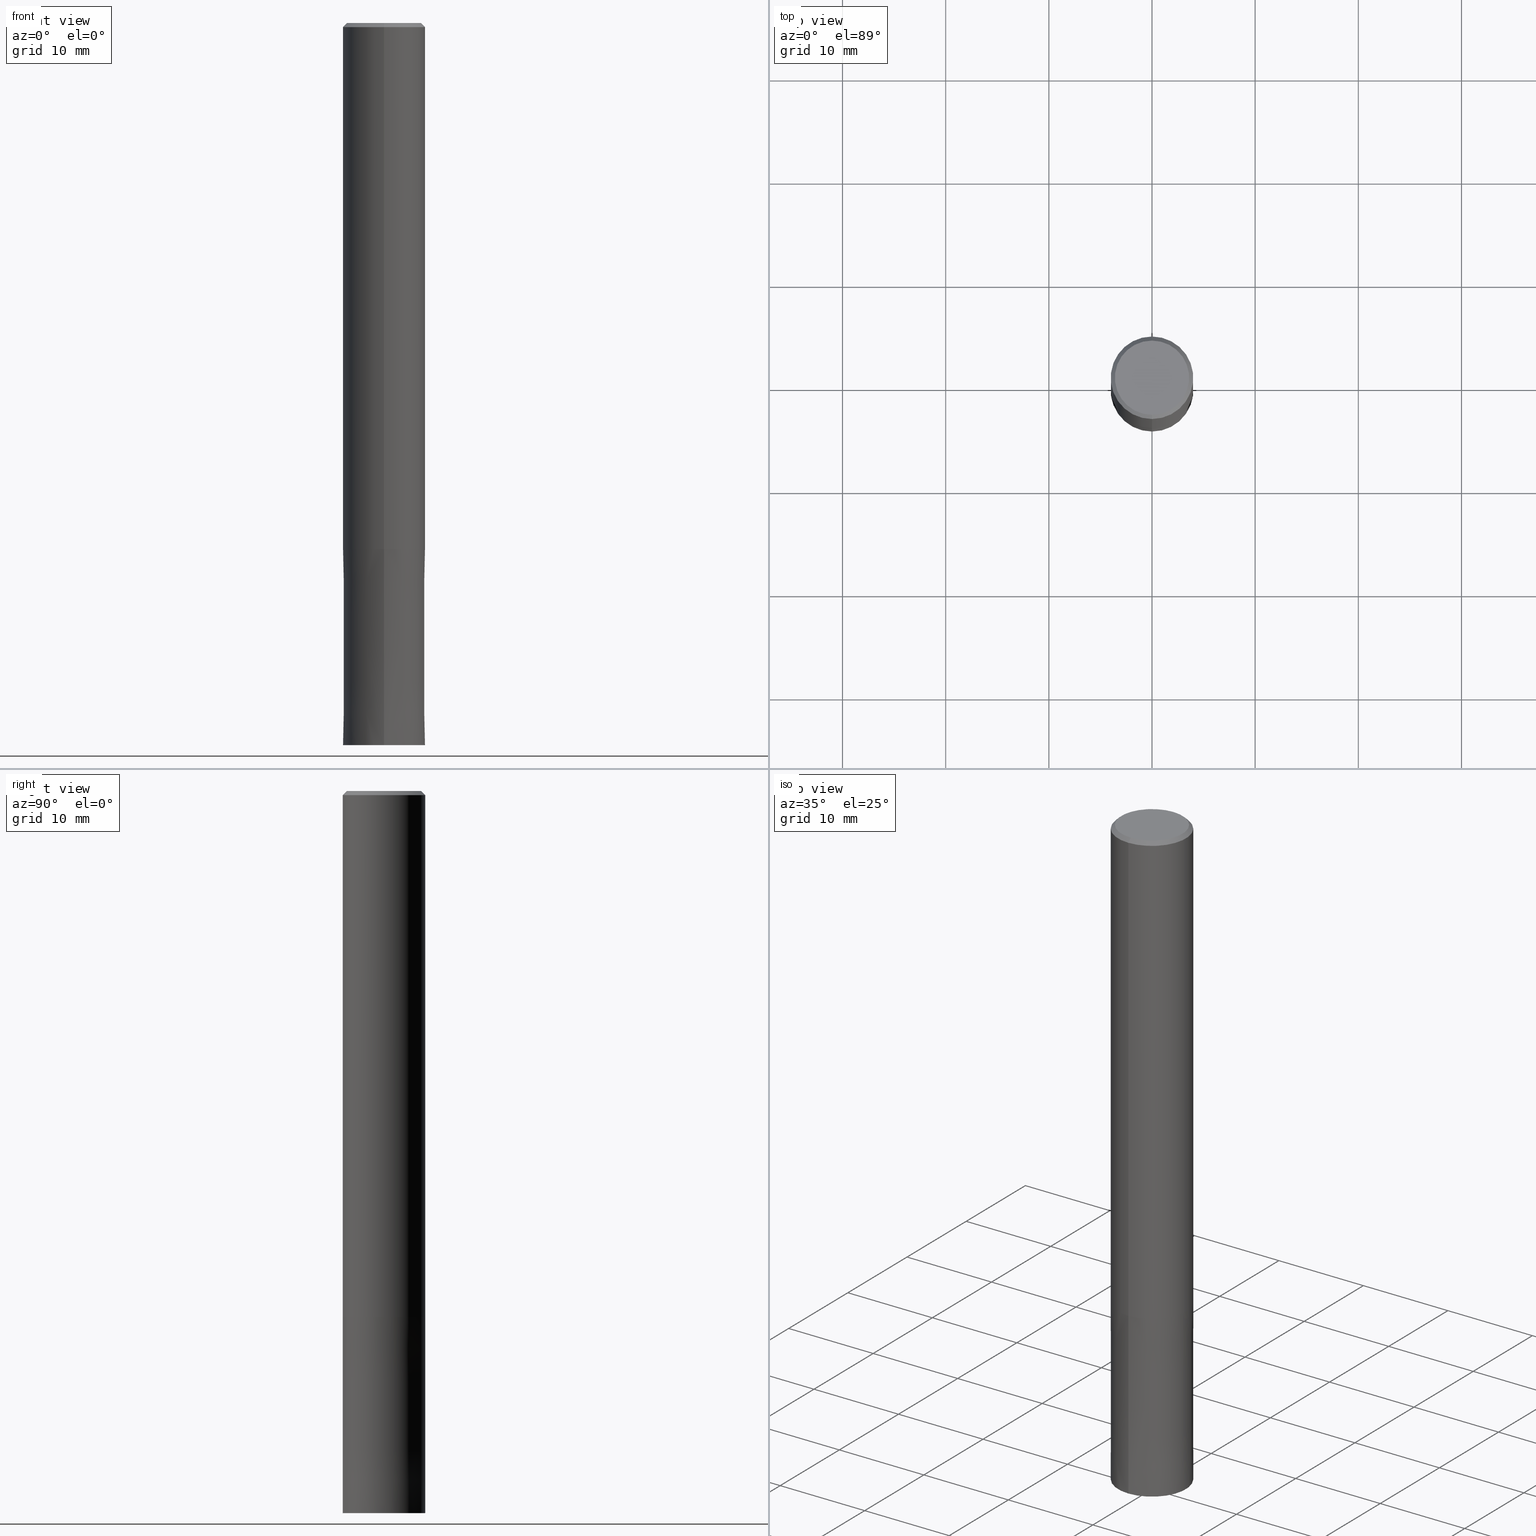
[diagram: canonical four-view strip — front | top / right | iso, engineering-drawing reading convention]
A machine part, canonical four-view strip (front | top / right | iso — engineering-drawing reading convention). The complete STEP part file that produces these views, byte-faithful:
ISO-10303-21;
HEADER;
FILE_DESCRIPTION(('no description'),'unknown implementation level');
FILE_NAME('CZS4080-1900-Huellk.stp','  ',('CIMSOURCE GmbH'),('CADClick - KiM GmbH - www.kimweb.de'),'unknown preprocess','ACIS','unknown authorization');
FILE_SCHEMA(('automotive_design'));
ENDSEC;
DATA;
#1=MECHANICAL_DESIGN_GEOMETRIC_PRESENTATION_REPRESENTATION(' ',(#10,#11,#12,#13,#14,#15,#16,#17,#18,#19,#20,#21,#22,#23,#24,#25,#26,#27,#28,#29,#30,#31,#32,#33,#34,#35,#36,#37,#38,#39,#40,#41,#42,#43,#44,#45),#6);
#2=PRODUCT_DEFINITION_CONTEXT('',#46,'design');
#3=APPLICATION_PROTOCOL_DEFINITION('INTERNATIONAL STANDARD','automotive_design',1994,#46);
#4=PRODUCT_CATEGORY_RELATIONSHIP('NONE','NONE',#47,#48);
#5=SHAPE_DEFINITION_REPRESENTATION(#49,#50);
#6= (GEOMETRIC_REPRESENTATION_CONTEXT(3)GLOBAL_UNCERTAINTY_ASSIGNED_CONTEXT((#53))GLOBAL_UNIT_ASSIGNED_CONTEXT((#55,#56,#57))REPRESENTATION_CONTEXT('NONE','WORKSPACE'));
#10=STYLED_ITEM('',(#59),#60);
#11=STYLED_ITEM('',(#61),#62);
#12=STYLED_ITEM('',(#63),#64);
#13=STYLED_ITEM('',(#65),#66);
#14=STYLED_ITEM('',(#67),#68);
#15=STYLED_ITEM('',(#69),#70);
#16=STYLED_ITEM('',(#71),#72);
#17=STYLED_ITEM('',(#73),#74);
#18=STYLED_ITEM('',(#75),#76);
#19=STYLED_ITEM('',(#77),#78);
#20=STYLED_ITEM('',(#79),#80);
#21=STYLED_ITEM('',(#81),#82);
#22=STYLED_ITEM('',(#83),#84);
#23=STYLED_ITEM('',(#85),#86);
#24=STYLED_ITEM('',(#87),#88);
#25=STYLED_ITEM('',(#89),#90);
#26=STYLED_ITEM('',(#91),#92);
#27=STYLED_ITEM('',(#93),#94);
#28=STYLED_ITEM('',(#95),#96);
#29=STYLED_ITEM('',(#97),#98);
#30=STYLED_ITEM('',(#99),#100);
#31=STYLED_ITEM('',(#101),#102);
#32=STYLED_ITEM('',(#103),#104);
#33=STYLED_ITEM('',(#105),#106);
#34=STYLED_ITEM('',(#107),#108);
#35=STYLED_ITEM('',(#109),#110);
#36=STYLED_ITEM('',(#111),#112);
#37=STYLED_ITEM('',(#113),#114);
#38=STYLED_ITEM('',(#115),#116);
#39=STYLED_ITEM('',(#117),#118);
#40=STYLED_ITEM('',(#119),#120);
#41=STYLED_ITEM('',(#121),#122);
#42=STYLED_ITEM('',(#123),#124);
#43=STYLED_ITEM('',(#125),#126);
#44=STYLED_ITEM('',(#127),#128);
#45=STYLED_ITEM('',(#129),#130);
#46=APPLICATION_CONTEXT(' ');
#47=PRODUCT_CATEGORY('part','NONE');
#48=PRODUCT_RELATED_PRODUCT_CATEGORY('detail',' ',(#131));
#49=PRODUCT_DEFINITION_SHAPE('NONE','NONE',#132);
#50=ADVANCED_BREP_SHAPE_REPRESENTATION('1',(#128,#133),#6);
#53=UNCERTAINTY_MEASURE_WITH_UNIT(LENGTH_MEASURE(1.0E-006),#55,'','');
#55= (CONVERSION_BASED_UNIT('MILLIMETRE',#136)LENGTH_UNIT()NAMED_UNIT(#139));
#56= (NAMED_UNIT(#141)PLANE_ANGLE_UNIT()SI_UNIT($,.RADIAN.));
#57= (NAMED_UNIT(#141)SOLID_ANGLE_UNIT()SI_UNIT($,.STERADIAN.));
#59=PRESENTATION_STYLE_ASSIGNMENT((#147));
#60=VERTEX_POINT('',#148);
#61=PRESENTATION_STYLE_ASSIGNMENT((#149));
#62=VERTEX_POINT('',#150);
#63=PRESENTATION_STYLE_ASSIGNMENT((#151));
#64=VERTEX_POINT('',#152);
#65=PRESENTATION_STYLE_ASSIGNMENT((#153));
#66=EDGE_CURVE('',#118,#68,#154,.T.);
#67=PRESENTATION_STYLE_ASSIGNMENT((#155));
#68=VERTEX_POINT('',#156);
#69=PRESENTATION_STYLE_ASSIGNMENT((#157));
#70=ADVANCED_FACE('',(#158),#159,.T.);
#71=PRESENTATION_STYLE_ASSIGNMENT((#160));
#72=EDGE_CURVE('',#92,#68,#161,.T.);
#73=PRESENTATION_STYLE_ASSIGNMENT((#162));
#74=ADVANCED_FACE('',(#163),#164,.T.);
#75=PRESENTATION_STYLE_ASSIGNMENT((#165));
#76=EDGE_CURVE('',#62,#96,#166,.T.);
#77=PRESENTATION_STYLE_ASSIGNMENT((#167));
#78=EDGE_CURVE('',#68,#96,#168,.T.);
#79=PRESENTATION_STYLE_ASSIGNMENT((#169));
#80=ADVANCED_FACE('',(#170),#171,.T.);
#81=PRESENTATION_STYLE_ASSIGNMENT((#172));
#82=EDGE_CURVE('',#118,#64,#173,.T.);
#83=PRESENTATION_STYLE_ASSIGNMENT((#174));
#84=EDGE_CURVE('',#102,#88,#175,.T.);
#85=PRESENTATION_STYLE_ASSIGNMENT((#176));
#86=EDGE_CURVE('',#114,#60,#177,.T.);
#87=PRESENTATION_STYLE_ASSIGNMENT((#178));
#88=VERTEX_POINT('',#179);
#89=PRESENTATION_STYLE_ASSIGNMENT((#180));
#90=EDGE_CURVE('',#68,#92,#181,.T.);
#91=PRESENTATION_STYLE_ASSIGNMENT((#182));
#92=VERTEX_POINT('',#183);
#93=PRESENTATION_STYLE_ASSIGNMENT((#184));
#94=EDGE_CURVE('',#60,#114,#185,.T.);
#95=PRESENTATION_STYLE_ASSIGNMENT((#186));
#96=VERTEX_POINT('',#187);
#97=PRESENTATION_STYLE_ASSIGNMENT((#188));
#98=ADVANCED_FACE('',(#189),#190,.T.);
#99=PRESENTATION_STYLE_ASSIGNMENT((#191));
#100=ADVANCED_FACE('',(#192),#193,.T.);
#101=PRESENTATION_STYLE_ASSIGNMENT((#194));
#102=VERTEX_POINT('',#195);
#103=PRESENTATION_STYLE_ASSIGNMENT((#196));
#104=EDGE_CURVE('',#92,#64,#197,.T.);
#105=PRESENTATION_STYLE_ASSIGNMENT((#198));
#106=ADVANCED_FACE('',(#199),#200,.T.);
#107=PRESENTATION_STYLE_ASSIGNMENT((#201));
#108=EDGE_CURVE('',#102,#114,#202,.T.);
#109=PRESENTATION_STYLE_ASSIGNMENT((#203));
#110=ADVANCED_FACE('',(#204,#205),#206,.T.);
#111=PRESENTATION_STYLE_ASSIGNMENT((#207));
#112=ADVANCED_FACE('',(#208),#209,.T.);
#113=PRESENTATION_STYLE_ASSIGNMENT((#210));
#114=VERTEX_POINT('',#211);
#115=PRESENTATION_STYLE_ASSIGNMENT((#212));
#116=ADVANCED_FACE('',(#213),#214,.T.);
#117=PRESENTATION_STYLE_ASSIGNMENT((#215));
#118=VERTEX_POINT('',#216);
#119=PRESENTATION_STYLE_ASSIGNMENT((#217));
#120=EDGE_CURVE('',#60,#88,#218,.T.);
#121=PRESENTATION_STYLE_ASSIGNMENT((#219));
#122=EDGE_CURVE('',#62,#92,#220,.T.);
#123=PRESENTATION_STYLE_ASSIGNMENT((#221));
#124=EDGE_CURVE('',#88,#102,#222,.T.);
#125=PRESENTATION_STYLE_ASSIGNMENT((#223));
#126=EDGE_CURVE('',#96,#62,#224,.T.);
#127=PRESENTATION_STYLE_ASSIGNMENT((#225));
#128=MANIFOLD_SOLID_BREP('1',#226);
#129=PRESENTATION_STYLE_ASSIGNMENT((#227));
#130=EDGE_CURVE('',#64,#118,#228,.T.);
#131=PRODUCT('1','1','PART-1-DESC',(#229));
#132=PRODUCT_DEFINITION('NONE','NONE',#230,#2);
#133=AXIS2_PLACEMENT_3D('',#231,#232,#233);
#136=LENGTH_MEASURE_WITH_UNIT(LENGTH_MEASURE(1.0),#234);
#139=DIMENSIONAL_EXPONENTS(1.0,0.0,0.0,0.0,0.0,0.0,0.0);
#141=DIMENSIONAL_EXPONENTS(0.0,0.0,0.0,0.0,0.0,0.0,0.0);
#147=POINT_STYLE(' ',#235,POSITIVE_LENGTH_MEASURE(1.0E-006),#236);
#148=CARTESIAN_POINT('',(4.89842541528951E-016,-4.0,-70.0));
#149=POINT_STYLE(' ',#237,POSITIVE_LENGTH_MEASURE(1.0E-006),#238);
#150=CARTESIAN_POINT('',(0.0,3.6,0.0));
#151=POINT_STYLE(' ',#239,POSITIVE_LENGTH_MEASURE(1.0E-006),#240);
#152=CARTESIAN_POINT('',(0.0,4.0,-51.0));
#153=CURVE_STYLE('',#241,POSITIVE_LENGTH_MEASURE(1.0E-006),#242);
#154=LINE('',#243,#244);
#155=POINT_STYLE(' ',#245,POSITIVE_LENGTH_MEASURE(1.0E-006),#246);
#156=CARTESIAN_POINT('',(4.89842541528951E-016,-4.0,-0.399999999999999));
#157=SURFACE_STYLE_USAGE(.BOTH.,#247);
#158=FACE_OUTER_BOUND('',#248,.T.);
#159=CONICAL_SURFACE('',#249,3.8,0.78539816339745);
#160=CURVE_STYLE('',#250,POSITIVE_LENGTH_MEASURE(1.0E-006),#251);
#161=CIRCLE('',#252,4.0);
#162=SURFACE_STYLE_USAGE(.BOTH.,#253);
#163=FACE_OUTER_BOUND('',#254,.T.);
#164=CONICAL_SURFACE('',#255,3.99995,5.26315789469935E-006);
#165=CURVE_STYLE('',#256,POSITIVE_LENGTH_MEASURE(1.0E-006),#257);
#166=CIRCLE('',#258,3.6);
#167=CURVE_STYLE('',#259,POSITIVE_LENGTH_MEASURE(1.0E-006),#260);
#168=LINE('',#261,#262);
#169=SURFACE_STYLE_USAGE(.BOTH.,#263);
#170=FACE_OUTER_BOUND('',#264,.T.);
#171=CONICAL_SURFACE('',#265,3.8,0.78539816339745);
#172=CURVE_STYLE('',#266,POSITIVE_LENGTH_MEASURE(1.0E-006),#267);
#173=CIRCLE('',#268,4.0);
#174=CURVE_STYLE('',#269,POSITIVE_LENGTH_MEASURE(1.0E-006),#270);
#175=CIRCLE('',#271,3.9999);
#176=CURVE_STYLE('',#272,POSITIVE_LENGTH_MEASURE(1.0E-006),#273);
#177=CIRCLE('',#274,4.0);
#178=POINT_STYLE(' ',#275,POSITIVE_LENGTH_MEASURE(1.0E-006),#276);
#179=CARTESIAN_POINT('',(4.89830295465413E-016,-3.9999,-51.0));
#180=CURVE_STYLE('',#277,POSITIVE_LENGTH_MEASURE(1.0E-006),#278);
#181=CIRCLE('',#279,4.0);
#182=POINT_STYLE(' ',#280,POSITIVE_LENGTH_MEASURE(1.0E-006),#281);
#183=CARTESIAN_POINT('',(0.0,4.0,-0.399999999999999));
#184=CURVE_STYLE('',#282,POSITIVE_LENGTH_MEASURE(1.0E-006),#283);
#185=CIRCLE('',#284,4.0);
#186=POINT_STYLE(' ',#285,POSITIVE_LENGTH_MEASURE(1.0E-006),#286);
#187=CARTESIAN_POINT('',(4.40858287376056E-016,-3.6,0.0));
#188=SURFACE_STYLE_USAGE(.BOTH.,#287);
#189=FACE_OUTER_BOUND('',#288,.T.);
#190=CYLINDRICAL_SURFACE('',#289,4.0);
#191=SURFACE_STYLE_USAGE(.BOTH.,#290);
#192=FACE_OUTER_BOUND('',#291,.T.);
#193=PLANE('',#292);
#194=POINT_STYLE(' ',#293,POSITIVE_LENGTH_MEASURE(1.0E-006),#294);
#195=CARTESIAN_POINT('',(0.0,3.9999,-51.0));
#196=CURVE_STYLE('',#295,POSITIVE_LENGTH_MEASURE(1.0E-006),#296);
#197=LINE('',#297,#298);
#198=SURFACE_STYLE_USAGE(.BOTH.,#299);
#199=FACE_OUTER_BOUND('',#300,.T.);
#200=CONICAL_SURFACE('',#301,3.99995,5.26315789469935E-006);
#201=CURVE_STYLE('',#302,POSITIVE_LENGTH_MEASURE(1.0E-006),#303);
#202=LINE('',#304,#305);
#203=SURFACE_STYLE_USAGE(.BOTH.,#306);
#204=FACE_OUTER_BOUND('',#307,.T.);
#205=FACE_BOUND('',#308,.T.);
#206=PLANE('',#309);
#207=SURFACE_STYLE_USAGE(.BOTH.,#310);
#208=FACE_OUTER_BOUND('',#311,.T.);
#209=PLANE('',#312);
#210=POINT_STYLE(' ',#313,POSITIVE_LENGTH_MEASURE(1.0E-006),#314);
#211=CARTESIAN_POINT('',(0.0,4.0,-70.0));
#212=SURFACE_STYLE_USAGE(.BOTH.,#315);
#213=FACE_OUTER_BOUND('',#316,.T.);
#214=CYLINDRICAL_SURFACE('',#317,4.0);
#215=POINT_STYLE(' ',#318,POSITIVE_LENGTH_MEASURE(1.0E-006),#319);
#216=CARTESIAN_POINT('',(4.89842541528951E-016,-4.0,-51.0));
#217=CURVE_STYLE('',#320,POSITIVE_LENGTH_MEASURE(1.0E-006),#321);
#218=LINE('',#322,#323);
#219=CURVE_STYLE('',#324,POSITIVE_LENGTH_MEASURE(1.0E-006),#325);
#220=LINE('',#326,#327);
#221=CURVE_STYLE('',#328,POSITIVE_LENGTH_MEASURE(1.0E-006),#329);
#222=CIRCLE('',#330,3.9999);
#223=CURVE_STYLE('',#331,POSITIVE_LENGTH_MEASURE(1.0E-006),#332);
#224=CIRCLE('',#333,3.6);
#225=SURFACE_STYLE_USAGE(.BOTH.,#334);
#226=CLOSED_SHELL('',(#74,#116,#80,#110,#112,#70,#98,#106,#100));
#227=CURVE_STYLE('',#335,POSITIVE_LENGTH_MEASURE(1.0E-006),#336);
#228=CIRCLE('',#337,4.0);
#229=PRODUCT_CONTEXT('',#46,'mechanical');
#230=PRODUCT_DEFINITION_FORMATION_WITH_SPECIFIED_SOURCE(' ','NONE',#131,.NOT_KNOWN.);
#231=CARTESIAN_POINT('',(0.0,0.0,0.0));
#232=DIRECTION('',(0.0,0.0,1.0));
#233=DIRECTION('',(1.0,0.0,0.0));
#234= (NAMED_UNIT(#139)LENGTH_UNIT()SI_UNIT(.MILLI.,.METRE.));
#235=PRE_DEFINED_MARKER('');
#236=COLOUR_RGB('',0.800000011920929,0.800000011920929,0.800000011920929);
#237=PRE_DEFINED_MARKER('');
#238=COLOUR_RGB('',0.498039215803146,0.498039215803146,0.498039215803146);
#239=PRE_DEFINED_MARKER('');
#240=COLOUR_RGB('',0.498039215803146,0.498039215803146,0.498039215803146);
#241=DRAUGHTING_PRE_DEFINED_CURVE_FONT('continuous');
#242=COLOUR_RGB('',0.498039215803146,0.498039215803146,0.498039215803146);
#243=CARTESIAN_POINT('',(4.89842541528951E-016,-4.0,-25.7));
#244=VECTOR('',#339,1.0);
#245=PRE_DEFINED_MARKER('');
#246=COLOUR_RGB('',0.498039215803146,0.498039215803146,0.498039215803146);
#247=SURFACE_SIDE_STYLE('',(#340));
#248=EDGE_LOOP('',(#341,#342,#343,#344));
#249=AXIS2_PLACEMENT_3D('',#345,#346,#347);
#250=DRAUGHTING_PRE_DEFINED_CURVE_FONT('continuous');
#251=COLOUR_RGB('',0.498039215803146,0.498039215803146,0.498039215803146);
#252=AXIS2_PLACEMENT_3D('',#348,#349,#350);
#253=SURFACE_SIDE_STYLE('',(#351));
#254=EDGE_LOOP('',(#352,#353,#354,#355));
#255=AXIS2_PLACEMENT_3D('',#356,#357,#358);
#256=DRAUGHTING_PRE_DEFINED_CURVE_FONT('continuous');
#257=COLOUR_RGB('',0.498039215803146,0.498039215803146,0.498039215803146);
#258=AXIS2_PLACEMENT_3D('',#359,#360,#361);
#259=DRAUGHTING_PRE_DEFINED_CURVE_FONT('continuous');
#260=COLOUR_RGB('',0.498039215803146,0.498039215803146,0.498039215803146);
#261=CARTESIAN_POINT('',(4.65350414452503E-016,-3.8,-0.199999999999996));
#262=VECTOR('',#362,1.0);
#263=SURFACE_SIDE_STYLE('',(#363));
#264=EDGE_LOOP('',(#364,#365,#366,#367));
#265=AXIS2_PLACEMENT_3D('',#368,#369,#370);
#266=DRAUGHTING_PRE_DEFINED_CURVE_FONT('continuous');
#267=COLOUR_RGB('',0.498039215803146,0.498039215803146,0.498039215803146);
#268=AXIS2_PLACEMENT_3D('',#371,#372,#373);
#269=DRAUGHTING_PRE_DEFINED_CURVE_FONT('continuous');
#270=COLOUR_RGB('',0.800000011920929,0.800000011920929,0.800000011920929);
#271=AXIS2_PLACEMENT_3D('',#374,#375,#376);
#272=DRAUGHTING_PRE_DEFINED_CURVE_FONT('continuous');
#273=COLOUR_RGB('',0.800000011920929,0.800000011920929,0.800000011920929);
#274=AXIS2_PLACEMENT_3D('',#377,#378,#379);
#275=PRE_DEFINED_MARKER('');
#276=COLOUR_RGB('',0.800000011920929,0.800000011920929,0.800000011920929);
#277=DRAUGHTING_PRE_DEFINED_CURVE_FONT('continuous');
#278=COLOUR_RGB('',0.498039215803146,0.498039215803146,0.498039215803146);
#279=AXIS2_PLACEMENT_3D('',#380,#381,#382);
#280=PRE_DEFINED_MARKER('');
#281=COLOUR_RGB('',0.498039215803146,0.498039215803146,0.498039215803146);
#282=DRAUGHTING_PRE_DEFINED_CURVE_FONT('continuous');
#283=COLOUR_RGB('',0.800000011920929,0.800000011920929,0.800000011920929);
#284=AXIS2_PLACEMENT_3D('',#383,#384,#385);
#285=PRE_DEFINED_MARKER('');
#286=COLOUR_RGB('',0.498039215803146,0.498039215803146,0.498039215803146);
#287=SURFACE_SIDE_STYLE('',(#386));
#288=EDGE_LOOP('',(#387,#388,#389,#390));
#289=AXIS2_PLACEMENT_3D('',#391,#392,#393);
#290=SURFACE_SIDE_STYLE('',(#394));
#291=EDGE_LOOP('',(#395,#396));
#292=AXIS2_PLACEMENT_3D('',#397,#398,#399);
#293=PRE_DEFINED_MARKER('');
#294=COLOUR_RGB('',0.800000011920929,0.800000011920929,0.800000011920929);
#295=DRAUGHTING_PRE_DEFINED_CURVE_FONT('continuous');
#296=COLOUR_RGB('',0.498039215803146,0.498039215803146,0.498039215803146);
#297=CARTESIAN_POINT('',(-4.89842541528951E-016,4.0,-25.7));
#298=VECTOR('',#400,1.0);
#299=SURFACE_SIDE_STYLE('',(#401));
#300=EDGE_LOOP('',(#402,#403,#404,#405));
#301=AXIS2_PLACEMENT_3D('',#406,#407,#408);
#302=DRAUGHTING_PRE_DEFINED_CURVE_FONT('continuous');
#303=COLOUR_RGB('',0.800000011920929,0.800000011920929,0.800000011920929);
#304=CARTESIAN_POINT('',(-4.89836418497182E-016,3.99995,-60.5));
#305=VECTOR('',#409,1.0);
#306=SURFACE_SIDE_STYLE('',(#410));
#307=EDGE_LOOP('',(#411,#412));
#308=EDGE_LOOP('',(#413,#414));
#309=AXIS2_PLACEMENT_3D('',#415,#416,#417);
#310=SURFACE_SIDE_STYLE('',(#418));
#311=EDGE_LOOP('',(#419,#420));
#312=AXIS2_PLACEMENT_3D('',#421,#422,#423);
#313=PRE_DEFINED_MARKER('');
#314=COLOUR_RGB('',0.800000011920929,0.800000011920929,0.800000011920929);
#315=SURFACE_SIDE_STYLE('',(#424));
#316=EDGE_LOOP('',(#425,#426,#427,#428));
#317=AXIS2_PLACEMENT_3D('',#429,#430,#431);
#318=PRE_DEFINED_MARKER('');
#319=COLOUR_RGB('',0.498039215803146,0.498039215803146,0.498039215803146);
#320=DRAUGHTING_PRE_DEFINED_CURVE_FONT('continuous');
#321=COLOUR_RGB('',0.800000011920929,0.800000011920929,0.800000011920929);
#322=CARTESIAN_POINT('',(4.89836418497182E-016,-3.99995,-60.5));
#323=VECTOR('',#432,1.0);
#324=DRAUGHTING_PRE_DEFINED_CURVE_FONT('continuous');
#325=COLOUR_RGB('',0.498039215803146,0.498039215803146,0.498039215803146);
#326=CARTESIAN_POINT('',(-4.65350414452503E-016,3.8,-0.199999999999996));
#327=VECTOR('',#433,1.0);
#328=DRAUGHTING_PRE_DEFINED_CURVE_FONT('continuous');
#329=COLOUR_RGB('',0.800000011920929,0.800000011920929,0.800000011920929);
#330=AXIS2_PLACEMENT_3D('',#434,#435,#436);
#331=DRAUGHTING_PRE_DEFINED_CURVE_FONT('continuous');
#332=COLOUR_RGB('',0.498039215803146,0.498039215803146,0.498039215803146);
#333=AXIS2_PLACEMENT_3D('',#437,#438,#439);
#334=SURFACE_SIDE_STYLE('',(#440));
#335=DRAUGHTING_PRE_DEFINED_CURVE_FONT('continuous');
#336=COLOUR_RGB('',0.498039215803146,0.498039215803146,0.498039215803146);
#337=AXIS2_PLACEMENT_3D('',#441,#442,#443);
#339=DIRECTION('',(-0.0,-0.0,1.0));
#340=SURFACE_STYLE_FILL_AREA(#444);
#341=ORIENTED_EDGE('',*,*,#122,.T.);
#342=ORIENTED_EDGE('',*,*,#90,.F.);
#343=ORIENTED_EDGE('',*,*,#78,.T.);
#344=ORIENTED_EDGE('',*,*,#126,.T.);
#345=CARTESIAN_POINT('',(0.0,0.0,-0.199999999999996));
#346=DIRECTION('',(0.0,-0.0,-1.0));
#347=DIRECTION('',(0.0,1.0,0.0));
#348=CARTESIAN_POINT('',(0.0,0.0,-0.399999999999999));
#349=DIRECTION('',(0.0,0.0,-1.0));
#350=DIRECTION('',(0.0,1.0,0.0));
#351=SURFACE_STYLE_FILL_AREA(#445);
#352=ORIENTED_EDGE('',*,*,#108,.F.);
#353=ORIENTED_EDGE('',*,*,#84,.T.);
#354=ORIENTED_EDGE('',*,*,#120,.F.);
#355=ORIENTED_EDGE('',*,*,#86,.F.);
#356=CARTESIAN_POINT('',(0.0,0.0,-60.5));
#357=DIRECTION('',(0.0,-0.0,-1.0));
#358=DIRECTION('',(0.0,1.0,0.0));
#359=CARTESIAN_POINT('',(0.0,0.0,0.0));
#360=DIRECTION('',(0.0,0.0,-1.0));
#361=DIRECTION('',(0.0,1.0,0.0));
#362=DIRECTION('',(-8.65927457071937E-017,0.707106781186549,0.707106781186546));
#363=SURFACE_STYLE_FILL_AREA(#446);
#364=ORIENTED_EDGE('',*,*,#122,.F.);
#365=ORIENTED_EDGE('',*,*,#76,.T.);
#366=ORIENTED_EDGE('',*,*,#78,.F.);
#367=ORIENTED_EDGE('',*,*,#72,.F.);
#368=CARTESIAN_POINT('',(0.0,0.0,-0.199999999999996));
#369=DIRECTION('',(0.0,-0.0,-1.0));
#370=DIRECTION('',(0.0,1.0,0.0));
#371=CARTESIAN_POINT('',(0.0,0.0,-51.0));
#372=DIRECTION('',(0.0,0.0,-1.0));
#373=DIRECTION('',(0.0,1.0,0.0));
#374=CARTESIAN_POINT('',(0.0,0.0,-51.0));
#375=DIRECTION('',(0.0,0.0,-1.0));
#376=DIRECTION('',(0.0,1.0,0.0));
#377=CARTESIAN_POINT('',(0.0,0.0,-70.0));
#378=DIRECTION('',(0.0,0.0,-1.0));
#379=DIRECTION('',(0.0,1.0,0.0));
#380=CARTESIAN_POINT('',(0.0,0.0,-0.399999999999999));
#381=DIRECTION('',(0.0,0.0,-1.0));
#382=DIRECTION('',(0.0,1.0,0.0));
#383=CARTESIAN_POINT('',(0.0,0.0,-70.0));
#384=DIRECTION('',(0.0,0.0,-1.0));
#385=DIRECTION('',(0.0,1.0,0.0));
#386=SURFACE_STYLE_FILL_AREA(#447);
#387=ORIENTED_EDGE('',*,*,#104,.T.);
#388=ORIENTED_EDGE('',*,*,#82,.F.);
#389=ORIENTED_EDGE('',*,*,#66,.T.);
#390=ORIENTED_EDGE('',*,*,#90,.T.);
#391=CARTESIAN_POINT('',(0.0,0.0,-25.7));
#392=DIRECTION('',(-0.0,-0.0,1.0));
#393=DIRECTION('',(0.0,1.0,0.0));
#394=SURFACE_STYLE_FILL_AREA(#448);
#395=ORIENTED_EDGE('',*,*,#86,.T.);
#396=ORIENTED_EDGE('',*,*,#94,.T.);
#397=CARTESIAN_POINT('',(0.0,1.9975,-70.0));
#398=DIRECTION('',(0.0,0.0,-1.0));
#399=DIRECTION('',(0.0,1.0,0.0));
#400=DIRECTION('',(0.0,0.0,-1.0));
#401=SURFACE_STYLE_FILL_AREA(#449);
#402=ORIENTED_EDGE('',*,*,#108,.T.);
#403=ORIENTED_EDGE('',*,*,#94,.F.);
#404=ORIENTED_EDGE('',*,*,#120,.T.);
#405=ORIENTED_EDGE('',*,*,#124,.T.);
#406=CARTESIAN_POINT('',(0.0,0.0,-60.5));
#407=DIRECTION('',(0.0,-0.0,-1.0));
#408=DIRECTION('',(0.0,1.0,0.0));
#409=DIRECTION('',(-6.44529659898948E-022,5.26315789467505E-006,-0.99999999998615));
#410=SURFACE_STYLE_FILL_AREA(#450);
#411=ORIENTED_EDGE('',*,*,#130,.T.);
#412=ORIENTED_EDGE('',*,*,#82,.T.);
#413=ORIENTED_EDGE('',*,*,#84,.F.);
#414=ORIENTED_EDGE('',*,*,#124,.F.);
#415=CARTESIAN_POINT('',(0.0,2.0,-51.0));
#416=DIRECTION('',(0.0,0.0,-1.0));
#417=DIRECTION('',(0.0,1.0,0.0));
#418=SURFACE_STYLE_FILL_AREA(#451);
#419=ORIENTED_EDGE('',*,*,#76,.F.);
#420=ORIENTED_EDGE('',*,*,#126,.F.);
#421=CARTESIAN_POINT('',(0.0,1.8,0.0));
#422=DIRECTION('',(-0.0,0.0,1.0));
#423=DIRECTION('',(0.0,-1.0,0.0));
#424=SURFACE_STYLE_FILL_AREA(#452);
#425=ORIENTED_EDGE('',*,*,#104,.F.);
#426=ORIENTED_EDGE('',*,*,#72,.T.);
#427=ORIENTED_EDGE('',*,*,#66,.F.);
#428=ORIENTED_EDGE('',*,*,#130,.F.);
#429=CARTESIAN_POINT('',(0.0,0.0,-25.7));
#430=DIRECTION('',(-0.0,-0.0,1.0));
#431=DIRECTION('',(0.0,1.0,0.0));
#432=DIRECTION('',(-6.44529659898947E-022,5.26315789467505E-006,0.99999999998615));
#433=DIRECTION('',(-8.65927457071937E-017,0.707106781186549,-0.707106781186546));
#434=CARTESIAN_POINT('',(0.0,0.0,-51.0));
#435=DIRECTION('',(0.0,0.0,-1.0));
#436=DIRECTION('',(0.0,1.0,0.0));
#437=CARTESIAN_POINT('',(0.0,0.0,0.0));
#438=DIRECTION('',(0.0,0.0,-1.0));
#439=DIRECTION('',(0.0,1.0,0.0));
#440=SURFACE_STYLE_FILL_AREA(#453);
#441=CARTESIAN_POINT('',(0.0,0.0,-51.0));
#442=DIRECTION('',(0.0,0.0,-1.0));
#443=DIRECTION('',(0.0,1.0,0.0));
#444=FILL_AREA_STYLE('',(#454));
#445=FILL_AREA_STYLE('',(#455));
#446=FILL_AREA_STYLE('',(#456));
#447=FILL_AREA_STYLE('',(#457));
#448=FILL_AREA_STYLE('',(#458));
#449=FILL_AREA_STYLE('',(#459));
#450=FILL_AREA_STYLE('',(#460));
#451=FILL_AREA_STYLE('',(#461));
#452=FILL_AREA_STYLE('',(#462));
#453=FILL_AREA_STYLE('',(#463));
#454=FILL_AREA_STYLE_COLOUR('',#464);
#455=FILL_AREA_STYLE_COLOUR('',#465);
#456=FILL_AREA_STYLE_COLOUR('',#466);
#457=FILL_AREA_STYLE_COLOUR('',#467);
#458=FILL_AREA_STYLE_COLOUR('',#468);
#459=FILL_AREA_STYLE_COLOUR('',#469);
#460=FILL_AREA_STYLE_COLOUR('',#470);
#461=FILL_AREA_STYLE_COLOUR('',#471);
#462=FILL_AREA_STYLE_COLOUR('',#472);
#463=FILL_AREA_STYLE_COLOUR('',#473);
#464=COLOUR_RGB('',0.498039215803146,0.498039215803146,0.498039215803146);
#465=COLOUR_RGB('',0.800000011920929,0.800000011920929,0.800000011920929);
#466=COLOUR_RGB('',0.498039215803146,0.498039215803146,0.498039215803146);
#467=COLOUR_RGB('',0.498039215803146,0.498039215803146,0.498039215803146);
#468=COLOUR_RGB('',0.800000011920929,0.800000011920929,0.800000011920929);
#469=COLOUR_RGB('',0.800000011920929,0.800000011920929,0.800000011920929);
#470=COLOUR_RGB('',0.498039215803146,0.498039215803146,0.498039215803146);
#471=COLOUR_RGB('',0.498039215803146,0.498039215803146,0.498039215803146);
#472=COLOUR_RGB('',0.498039215803146,0.498039215803146,0.498039215803146);
#473=COLOUR_RGB('',0.800000011920929,0.800000011920929,0.800000011920929);
#474=AXIS2_PLACEMENT_3D('PCS',#475,#476,#477);
#475=CARTESIAN_POINT('',(0.0,0.0,0.0));
#476=DIRECTION('',(0.0,0.0,1.0));
#477=DIRECTION('',(1.0,0.0,0.0));
#478=AXIS2_PLACEMENT_3D('CIP',#479,#480,#481);
#479=CARTESIAN_POINT('',(0.0,0.0,-70.0));
#480=DIRECTION('',(0.0,0.0,1.0));
#481=DIRECTION('',(1.0,0.0,0.0));
#482=AXIS2_PLACEMENT_3D('CRP',#483,#484,#485);
#483=CARTESIAN_POINT('',(-4.0,0.0,-70.0));
#484=DIRECTION('',(0.0,0.0,1.0));
#485=DIRECTION('',(1.0,0.0,0.0));
#486=AXIS2_PLACEMENT_3D('MCS',#487,#488,#489);
#487=CARTESIAN_POINT('',(0.0,0.0,-51.0));
#488=DIRECTION('',(0.0,0.0,1.0));
#489=DIRECTION('',(1.0,0.0,0.0));
#490=CONSTRUCTIVE_GEOMETRY_REPRESENTATION_RELATIONSHIP('coordinate systems',$,#50,#491);
#491=CONSTRUCTIVE_GEOMETRY_REPRESENTATION('coordinate systems',(#474,#478,#482,#486),#6);
ENDSEC;
END-ISO-10303-21;
